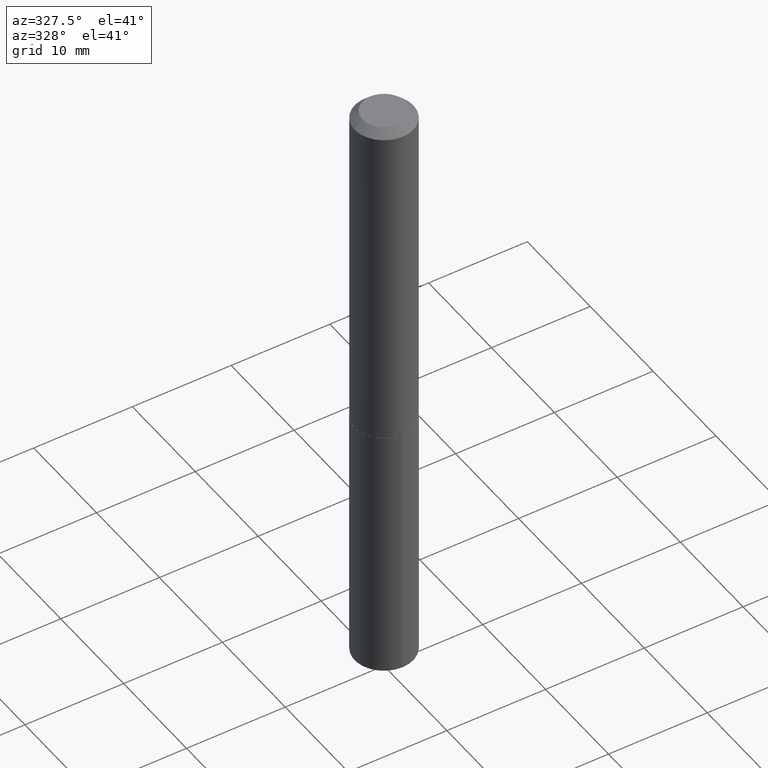
[diagram: clean part render]
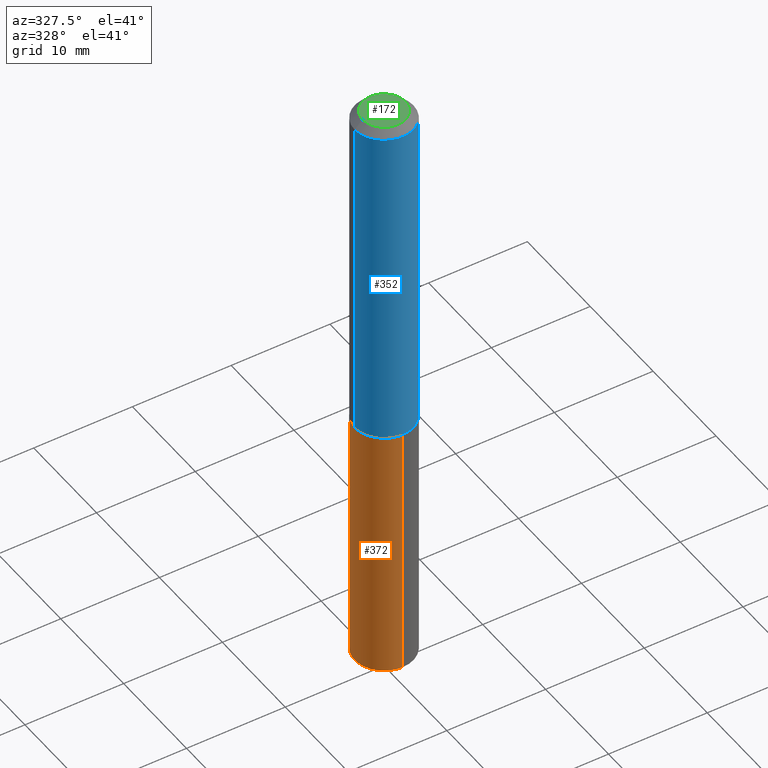
[diagram: same view with three faces highlighted in distinct colors, each labeled with its STEP entity id]
A machine part, auxiliary view with three faces highlighted in distinct colors.
Their STEP definitions:

[orange] entity #372 — the highlighted cylindrical surface (edge-blend (fillet) strip) has radius 2.9769 mm, axis along (-0, 0, 1).
#48 = DIRECTION ( 'NONE',  ( -6.982962677686265922E-15, -1.000000000000000000, 2.330928322239132474E-15 ) ) ;
#60 = DIRECTION ( 'NONE',  ( -6.982962677686265922E-15, -1.000000000000000000, 2.330928322239132474E-15 ) ) ;
#65 = DIRECTION ( 'NONE',  ( -2.445142826473885278E-29, 3.491948160343270663E-15, 1.000000000000000000 ) ) ;
#84 = ORIENTED_EDGE ( 'NONE', *, *, #217, .T. ) ;
#85 = CARTESIAN_POINT ( 'NONE',  ( 3.324370295128073917E-29, -4.746319732023370863E-15, -1.359399999999999720 ) ) ;
#97 = AXIS2_PLACEMENT_3D ( 'NONE', #85, #296, #60 ) ;
#105 = CYLINDRICAL_SURFACE ( 'NONE', #97, 0.1171999999999999986 ) ;
#114 = ORIENTED_EDGE ( 'NONE', *, *, #235, .F. ) ;
#127 = DIRECTION ( 'NONE',  ( -2.445142826473885278E-29, 3.491948160343270663E-15, 1.000000000000000000 ) ) ;
#129 = DIRECTION ( 'NONE',  ( -2.445142826473885278E-29, 3.491948160343270663E-15, 1.000000000000000000 ) ) ;
#135 = CARTESIAN_POINT ( 'NONE',  ( 8.327560863108961782E-16, 0.1171999999999952663, -1.359399999999999942 ) ) ;
#145 = AXIS2_PLACEMENT_3D ( 'NONE', #375, #129, #258 ) ;
#158 = EDGE_CURVE ( 'NONE', #185, #323, #256, .T. ) ;
#160 = CIRCLE ( 'NONE', #145, 0.1171999999999999986 ) ;
#185 = VERTEX_POINT ( 'NONE', #189 ) ;
#187 = CIRCLE ( 'NONE', #206, 0.1171999999999999986 ) ;
#189 = CARTESIAN_POINT ( 'NONE',  ( -8.184032258247719810E-16, -0.1172000000000083947, -2.394842688544001064 ) ) ;
#192 = DIRECTION ( 'NONE',  ( -2.445142826473885278E-29, 3.491948160343270663E-15, 1.000000000000000000 ) ) ;
#197 = CARTESIAN_POINT ( 'NONE',  ( -8.184032258247971259E-16, -0.1172000000000047448, -1.359399999999999498 ) ) ;
#206 = AXIS2_PLACEMENT_3D ( 'NONE', #379, #127, #48 ) ;
#212 = EDGE_CURVE ( 'NONE', #274, #297, #368, .T. ) ;
#217 = EDGE_CURVE ( 'NONE', #274, #185, #160, .T. ) ;
#221 = CARTESIAN_POINT ( 'NONE',  ( 8.327560863108705402E-16, 0.1171999999999952524, -1.359399999999999942 ) ) ;
#235 = EDGE_CURVE ( 'NONE', #297, #323, #187, .T. ) ;
#238 = FACE_OUTER_BOUND ( 'NONE', #248, .T. ) ;
#242 = ORIENTED_EDGE ( 'NONE', *, *, #158, .T. ) ;
#248 = EDGE_LOOP ( 'NONE', ( #301, #84, #242, #114 ) ) ;
#256 = LINE ( 'NONE', #276, #283 ) ;
#258 = DIRECTION ( 'NONE',  ( -6.982962677686265922E-15, -1.000000000000000000, 2.330928322239132474E-15 ) ) ;
#274 = VERTEX_POINT ( 'NONE', #318 ) ;
#276 = CARTESIAN_POINT ( 'NONE',  ( -8.184032258247971259E-16, -0.1172000000000047448, -1.359399999999999498 ) ) ;
#283 = VECTOR ( 'NONE', #192, 39.37007874015748143 ) ;
#296 = DIRECTION ( 'NONE',  ( -2.445142826473885278E-29, 3.491948160343270663E-15, 1.000000000000000000 ) ) ;
#297 = VERTEX_POINT ( 'NONE', #135 ) ;
#301 = ORIENTED_EDGE ( 'NONE', *, *, #212, .F. ) ;
#318 = CARTESIAN_POINT ( 'NONE',  ( 8.327560863108961782E-16, 0.1171999999999916720, -2.394842688544001508 ) ) ;
#323 = VERTEX_POINT ( 'NONE', #197 ) ;
#342 = VECTOR ( 'NONE', #65, 39.37007874015748143 ) ;
#368 = LINE ( 'NONE', #221, #342 ) ;
#372 = ADVANCED_FACE ( 'NONE', ( #238 ), #105, .T. ) ;
#375 = CARTESIAN_POINT ( 'NONE',  ( 5.856175557246273270E-29, -8.362031923425486849E-15, -2.394842688544001064 ) ) ;
#379 = CARTESIAN_POINT ( 'NONE',  ( 3.324370295128073917E-29, -4.746319732023370863E-15, -1.359399999999999720 ) ) ;

[blue] entity #352 — the highlighted cylindrical surface (edge-blend (fillet) strip) has radius 2.9769 mm, axis along (-0, 0, 1).
#3 = VERTEX_POINT ( 'NONE', #149 ) ;
#14 = CARTESIAN_POINT ( 'NONE',  ( 0.000000000000000000, 0.000000000000000000, 0.000000000000000000 ) ) ;
#22 = DIRECTION ( 'NONE',  ( 1.000000000000000000, -6.982962677686266711E-15, 0.000000000000000000 ) ) ;
#30 = ORIENTED_EDGE ( 'NONE', *, *, #277, .F. ) ;
#40 = DIRECTION ( 'NONE',  ( -2.445468806185136597E-29, 3.491481338843145583E-15, 1.000000000000000000 ) ) ;
#45 = CARTESIAN_POINT ( 'NONE',  ( 7.642090019328600035E-31, -1.091087918388489897E-16, -0.03125000000000020123 ) ) ;
#55 = ORIENTED_EDGE ( 'NONE', *, *, #162, .T. ) ;
#61 = ORIENTED_EDGE ( 'NONE', *, *, #266, .F. ) ;
#70 = CARTESIAN_POINT ( 'NONE',  ( -0.1172000000000001929, -3.911817905043111360E-15, -1.358899999999999775 ) ) ;
#77 = DIRECTION ( 'NONE',  ( -2.445468806185136877E-29, 3.491481338843145188E-15, 1.000000000000000000 ) ) ;
#91 = AXIS2_PLACEMENT_3D ( 'NONE', #45, #98, #22 ) ;
#94 = CARTESIAN_POINT ( 'NONE',  ( -0.1171999999999999986, -1.594085305285560836E-15, -0.03125000000000020123 ) ) ;
#96 = AXIS2_PLACEMENT_3D ( 'NONE', #115, #40, #251 ) ;
#98 = DIRECTION ( 'NONE',  ( -2.445468806185136597E-29, 3.491481338843145583E-15, 1.000000000000000000 ) ) ;
#99 = DIRECTION ( 'NONE',  ( -2.445468806185136877E-29, 3.491481338843145188E-15, 1.000000000000000000 ) ) ;
#115 = CARTESIAN_POINT ( 'NONE',  ( 3.323147560724981676E-29, -4.744573991353950148E-15, -1.358899999999999775 ) ) ;
#125 = AXIS2_PLACEMENT_3D ( 'NONE', #14, #229, #126 ) ;
#126 = DIRECTION ( 'NONE',  ( 1.000000000000000000, -6.982962677686266711E-15, 4.876176775795936353E-29 ) ) ;
#140 = VERTEX_POINT ( 'NONE', #94 ) ;
#149 = CARTESIAN_POINT ( 'NONE',  ( 0.1172000000000001929, -5.562977217178781787E-15, -1.358899999999999775 ) ) ;
#159 = FACE_OUTER_BOUND ( 'NONE', #327, .T. ) ;
#162 = EDGE_CURVE ( 'NONE', #239, #3, #373, .T. ) ;
#175 = ORIENTED_EDGE ( 'NONE', *, *, #249, .T. ) ;
#218 = CIRCLE ( 'NONE', #91, 0.1171999999999999986 ) ;
#229 = DIRECTION ( 'NONE',  ( -2.445468806185136597E-29, 3.491481338843145583E-15, 1.000000000000000000 ) ) ;
#233 = LINE ( 'NONE', #351, #386 ) ;
#239 = VERTEX_POINT ( 'NONE', #70 ) ;
#249 = EDGE_CURVE ( 'NONE', #3, #363, #233, .T. ) ;
#251 = DIRECTION ( 'NONE',  ( 1.000000000000000000, -6.982962677686266711E-15, 0.000000000000000000 ) ) ;
#266 = EDGE_CURVE ( 'NONE', #140, #363, #218, .T. ) ;
#277 = EDGE_CURVE ( 'NONE', #239, #140, #313, .T. ) ;
#282 = CYLINDRICAL_SURFACE ( 'NONE', #125, 0.1172000000000000819 ) ;
#313 = LINE ( 'NONE', #316, #367 ) ;
#314 = CARTESIAN_POINT ( 'NONE',  ( 0.1171999999999999986, -9.275120176636793588E-16, -0.03125000000000020123 ) ) ;
#316 = CARTESIAN_POINT ( 'NONE',  ( -0.1172000000000000819, 8.327560863108379997E-16, -5.764991925778754026E-30 ) ) ;
#327 = EDGE_LOOP ( 'NONE', ( #30, #55, #175, #61 ) ) ;
#351 = CARTESIAN_POINT ( 'NONE',  ( 0.1172000000000000819, -8.184032258248310470E-16, 5.714879181232841379E-30 ) ) ;
#352 = ADVANCED_FACE ( 'NONE', ( #159 ), #282, .T. ) ;
#363 = VERTEX_POINT ( 'NONE', #314 ) ;
#367 = VECTOR ( 'NONE', #99, 39.37007874015748143 ) ;
#373 = CIRCLE ( 'NONE', #96, 0.1172000000000001929 ) ;
#386 = VECTOR ( 'NONE', #77, 39.37007874015748143 ) ;

[green] entity #172 — the highlighted planar face has unit normal (0, -0, -1).
#6 = DIRECTION ( 'NONE',  ( -2.445468806185136597E-29, 3.491481338843145583E-15, 1.000000000000000000 ) ) ;
#33 = AXIS2_PLACEMENT_3D ( 'NONE', #219, #37, #64 ) ;
#35 = DIRECTION ( 'NONE',  ( -2.445468806185136597E-29, 3.491481338843145583E-15, 1.000000000000000000 ) ) ;
#37 = DIRECTION ( 'NONE',  ( 2.438088387897960049E-29, -3.491481338843145188E-15, -1.000000000000000000 ) ) ;
#64 = DIRECTION ( 'NONE',  ( -1.000000000000000000, 6.982962677686265922E-15, -4.876176775795935793E-29 ) ) ;
#90 = PLANE ( 'NONE',  #33 ) ;
#108 = VERTEX_POINT ( 'NONE', #337 ) ;
#117 = DIRECTION ( 'NONE',  ( 1.000000000000000000, -6.982962677686265922E-15, 4.876153431562314205E-29 ) ) ;
#134 = EDGE_CURVE ( 'NONE', #108, #262, #272, .T. ) ;
#148 = DIRECTION ( 'NONE',  ( 1.000000000000000000, -6.982962677686265922E-15, 4.876153431562314205E-29 ) ) ;
#168 = AXIS2_PLACEMENT_3D ( 'NONE', #305, #6, #117 ) ;
#172 = ADVANCED_FACE ( 'NONE', ( #366 ), #90, .F. ) ;
#173 = EDGE_LOOP ( 'NONE', ( #208, #355 ) ) ;
#203 = EDGE_CURVE ( 'NONE', #262, #108, #289, .T. ) ;
#208 = ORIENTED_EDGE ( 'NONE', *, *, #134, .T. ) ;
#219 = CARTESIAN_POINT ( 'NONE',  ( -1.167985862904640673E-47, 1.667574263899824362E-33, 4.776122516674691392E-19 ) ) ;
#246 = AXIS2_PLACEMENT_3D ( 'NONE', #332, #35, #148 ) ;
#262 = VERTEX_POINT ( 'NONE', #377 ) ;
#272 = CIRCLE ( 'NONE', #246, 0.08595000000000001250 ) ;
#289 = CIRCLE ( 'NONE', #168, 0.08595000000000001250 ) ;
#305 = CARTESIAN_POINT ( 'NONE',  ( -2.335971725809281346E-47, 3.335148527799648725E-33, 9.552245033349382783E-19 ) ) ;
#332 = CARTESIAN_POINT ( 'NONE',  ( -2.335971725809281346E-47, 3.335148527799648725E-33, 9.552245033349382783E-19 ) ) ;
#337 = CARTESIAN_POINT ( 'NONE',  ( -0.08595000000000001250, 6.547400380665580863E-16, 9.552245033305502395E-19 ) ) ;
#355 = ORIENTED_EDGE ( 'NONE', *, *, #203, .T. ) ;
#366 = FACE_OUTER_BOUND ( 'NONE', #173, .T. ) ;
#377 = CARTESIAN_POINT ( 'NONE',  ( 0.08595000000000001250, -7.514094800430678722E-16, 9.552245033396635474E-19 ) ) ;